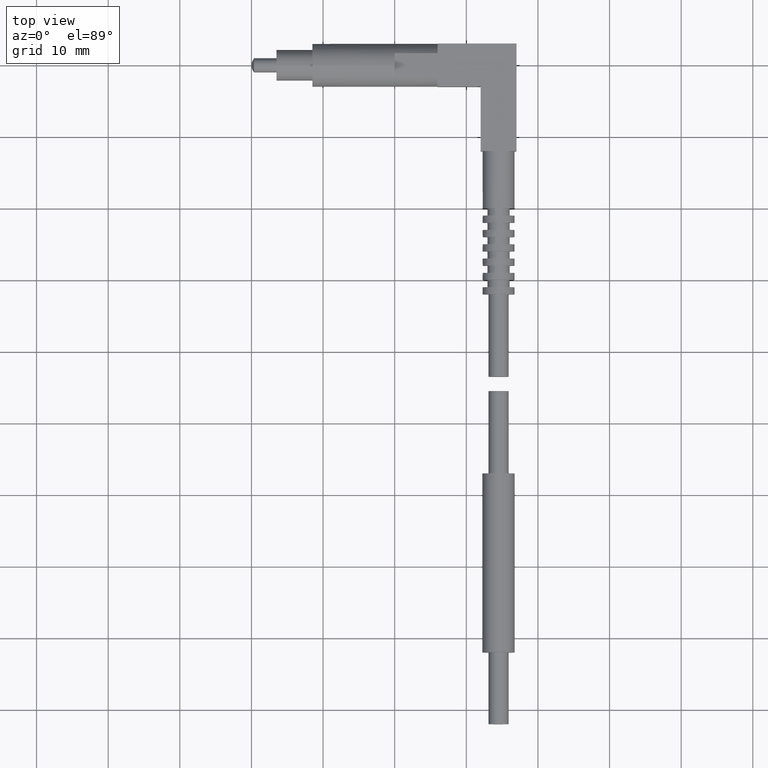
[diagram: clean part render]
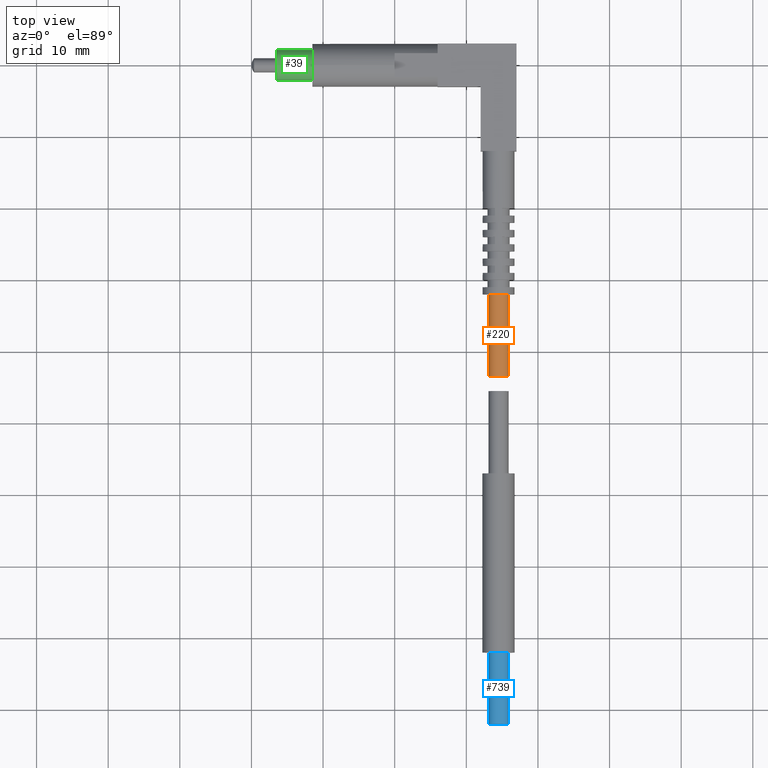
[diagram: same view with three faces highlighted in distinct colors, each labeled with its STEP entity id]
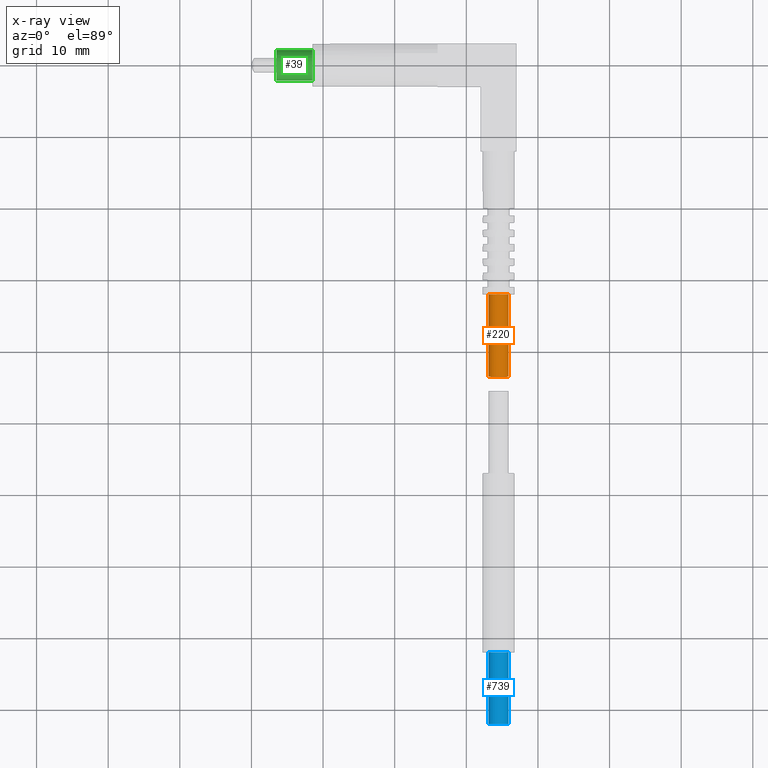
[diagram: x-ray of the same camera — body ghosted, the three highlighted faces saturated]
A machine part, top view with three faces highlighted in distinct colors.
The next image is the same camera in x-ray (body ghosted, the three faces saturated) — at least one of them is partly hidden behind the body in this view.
Their STEP definitions:

[orange] entity #220 — the highlighted cylindrical surface (bore or boss wall) has radius 1.4 mm, axis along (-0, -1, 0).
#50 = DIRECTION ( 'NONE',  ( -0.0000000000000000000, -1.000000000000000000, -0.0000000000000000000 ) ) ;
#137 = EDGE_LOOP ( 'NONE', ( #1401 ) ) ;
#214 = VERTEX_POINT ( 'NONE', #855 ) ;
#220 = ADVANCED_FACE ( 'NONE', ( #1279, #1238 ), #433, .T. ) ;
#259 = CARTESIAN_POINT ( 'NONE',  ( 1.358267716535433323, -3.622047282887606467, 0.0000000000000000000 ) ) ;
#289 = CIRCLE ( 'NONE', #1893, 0.05511811023622041616 ) ;
#433 = CYLINDRICAL_SURFACE ( 'NONE', #885, 0.05511811023622041616 ) ;
#509 = EDGE_CURVE ( 'NONE', #214, #214, #1437, .T. ) ;
#540 = ORIENTED_EDGE ( 'NONE', *, *, #509, .F. ) ;
#708 = DIRECTION ( 'NONE',  ( -3.469446909221080090E-16, -1.000000000000000000, 0.0000000000000000000 ) ) ;
#780 = DIRECTION ( 'NONE',  ( 0.0000000000000000000, 0.0000000000000000000, 1.000000000000000000 ) ) ;
#817 = DIRECTION ( 'NONE',  ( 1.000000000000000000, 0.0000000000000000000, 0.0000000000000000000 ) ) ;
#819 = AXIS2_PLACEMENT_3D ( 'NONE', #1510, #50, #780 ) ;
#855 = CARTESIAN_POINT ( 'NONE',  ( 1.358267716535433323, -1.712598425196850238, 0.05511811023622047168 ) ) ;
#885 = AXIS2_PLACEMENT_3D ( 'NONE', #259, #708, #1412 ) ;
#990 = CARTESIAN_POINT ( 'NONE',  ( 1.413385826771653697, -1.259842519685039353, 0.0000000000000000000 ) ) ;
#1238 = FACE_OUTER_BOUND ( 'NONE', #137, .T. ) ;
#1251 = EDGE_CURVE ( 'NONE', #1846, #1846, #289, .T. ) ;
#1279 = FACE_OUTER_BOUND ( 'NONE', #1605, .T. ) ;
#1401 = ORIENTED_EDGE ( 'NONE', *, *, #1251, .T. ) ;
#1412 = DIRECTION ( 'NONE',  ( 1.000000000000000000, 0.0000000000000000000, 0.0000000000000000000 ) ) ;
#1437 = CIRCLE ( 'NONE', #819, 0.05511811023622047168 ) ;
#1510 = CARTESIAN_POINT ( 'NONE',  ( 1.358267716535433323, -1.712598425196850238, 0.0000000000000000000 ) ) ;
#1533 = CARTESIAN_POINT ( 'NONE',  ( 1.358267716535433323, -1.259842519685039353, 0.0000000000000000000 ) ) ;
#1605 = EDGE_LOOP ( 'NONE', ( #540 ) ) ;
#1836 = DIRECTION ( 'NONE',  ( -3.469446909221080090E-16, -1.000000000000000000, 0.0000000000000000000 ) ) ;
#1846 = VERTEX_POINT ( 'NONE', #990 ) ;
#1893 = AXIS2_PLACEMENT_3D ( 'NONE', #1533, #1836, #817 ) ;

[blue] entity #739 — the highlighted cylindrical surface (bore or boss wall) has radius 1.4 mm, axis along (-0, -1, 0).
#125 = CARTESIAN_POINT ( 'NONE',  ( 1.413385905511810980, -3.622047204724409664, 0.0000000000000000000 ) ) ;
#194 = DIRECTION ( 'NONE',  ( 1.000000000000000000, 0.0000000000000000000, 0.0000000000000000000 ) ) ;
#213 = AXIS2_PLACEMENT_3D ( 'NONE', #527, #218, #644 ) ;
#218 = DIRECTION ( 'NONE',  ( -3.469446909221080090E-16, -1.000000000000000000, 0.0000000000000000000 ) ) ;
#429 = CIRCLE ( 'NONE', #682, 0.05511818897637785208 ) ;
#521 = CIRCLE ( 'NONE', #1386, 0.05511818897637785208 ) ;
#527 = CARTESIAN_POINT ( 'NONE',  ( 1.358267716535433323, -3.622047282887606467, 0.0000000000000000000 ) ) ;
#563 = CARTESIAN_POINT ( 'NONE',  ( 1.413385905511810980, -3.228346417322834672, 0.0000000000000000000 ) ) ;
#620 = CARTESIAN_POINT ( 'NONE',  ( 1.358267716535433323, -3.622047204724409664, 0.0000000000000000000 ) ) ;
#644 = DIRECTION ( 'NONE',  ( 1.000000000000000000, 0.0000000000000000000, 0.0000000000000000000 ) ) ;
#669 = FACE_OUTER_BOUND ( 'NONE', #994, .T. ) ;
#682 = AXIS2_PLACEMENT_3D ( 'NONE', #1051, #745, #1772 ) ;
#739 = ADVANCED_FACE ( 'NONE', ( #669, #779 ), #1900, .T. ) ;
#745 = DIRECTION ( 'NONE',  ( -3.469446909221080090E-16, -1.000000000000000000, 0.0000000000000000000 ) ) ;
#779 = FACE_OUTER_BOUND ( 'NONE', #1513, .T. ) ;
#918 = EDGE_CURVE ( 'NONE', #1315, #1315, #429, .T. ) ;
#994 = EDGE_LOOP ( 'NONE', ( #1621 ) ) ;
#1051 = CARTESIAN_POINT ( 'NONE',  ( 1.358267716535433323, -3.228346417322834672, 0.0000000000000000000 ) ) ;
#1116 = EDGE_CURVE ( 'NONE', #1699, #1699, #521, .T. ) ;
#1315 = VERTEX_POINT ( 'NONE', #563 ) ;
#1386 = AXIS2_PLACEMENT_3D ( 'NONE', #620, #1808, #194 ) ;
#1473 = ORIENTED_EDGE ( 'NONE', *, *, #1116, .F. ) ;
#1513 = EDGE_LOOP ( 'NONE', ( #1473 ) ) ;
#1621 = ORIENTED_EDGE ( 'NONE', *, *, #918, .T. ) ;
#1699 = VERTEX_POINT ( 'NONE', #125 ) ;
#1772 = DIRECTION ( 'NONE',  ( 1.000000000000000000, 0.0000000000000000000, 0.0000000000000000000 ) ) ;
#1808 = DIRECTION ( 'NONE',  ( -3.469446909221080090E-16, -1.000000000000000000, 0.0000000000000000000 ) ) ;
#1900 = CYLINDRICAL_SURFACE ( 'NONE', #213, 0.05511818897637785208 ) ;

[green] entity #39 — the highlighted cylindrical surface (bore or boss wall) has radius 2.15 mm, axis along (-1, 0, 0).
#39 = ADVANCED_FACE ( 'NONE', ( #1805, #271 ), #1194, .T. ) ;
#65 = EDGE_CURVE ( 'NONE', #328, #328, #1571, .T. ) ;
#104 = CARTESIAN_POINT ( 'NONE',  ( 0.3346456692913385988, 0.0000000000000000000, 0.0000000000000000000 ) ) ;
#109 = DIRECTION ( 'NONE',  ( -1.000000000000000000, 0.0000000000000000000, 0.0000000000000000000 ) ) ;
#134 = ORIENTED_EDGE ( 'NONE', *, *, #1329, .T. ) ;
#167 = DIRECTION ( 'NONE',  ( -1.000000000000000000, 0.0000000000000000000, 0.0000000000000000000 ) ) ;
#243 = CARTESIAN_POINT ( 'NONE',  ( 0.3346456692913385988, 0.0000000000000000000, 0.08464566929133858497 ) ) ;
#271 = FACE_OUTER_BOUND ( 'NONE', #1042, .T. ) ;
#328 = VERTEX_POINT ( 'NONE', #1117 ) ;
#464 = VERTEX_POINT ( 'NONE', #243 ) ;
#627 = CARTESIAN_POINT ( 'NONE',  ( 0.0000000000000000000, 0.0000000000000000000, 0.0000000000000000000 ) ) ;
#1042 = EDGE_LOOP ( 'NONE', ( #134 ) ) ;
#1063 = DIRECTION ( 'NONE',  ( 0.0000000000000000000, 0.0000000000000000000, 1.000000000000000000 ) ) ;
#1079 = DIRECTION ( 'NONE',  ( -1.000000000000000000, 0.0000000000000000000, 0.0000000000000000000 ) ) ;
#1112 = EDGE_LOOP ( 'NONE', ( #1286 ) ) ;
#1117 = CARTESIAN_POINT ( 'NONE',  ( 0.1377952755905511861, 0.0000000000000000000, 0.08464566929133858497 ) ) ;
#1194 = CYLINDRICAL_SURFACE ( 'NONE', #1572, 0.08464566929133858497 ) ;
#1274 = CIRCLE ( 'NONE', #1457, 0.08464566929133858497 ) ;
#1286 = ORIENTED_EDGE ( 'NONE', *, *, #65, .F. ) ;
#1329 = EDGE_CURVE ( 'NONE', #464, #464, #1274, .T. ) ;
#1457 = AXIS2_PLACEMENT_3D ( 'NONE', #104, #109, #1865 ) ;
#1571 = CIRCLE ( 'NONE', #1767, 0.08464566929133858497 ) ;
#1572 = AXIS2_PLACEMENT_3D ( 'NONE', #627, #167, #1629 ) ;
#1629 = DIRECTION ( 'NONE',  ( 0.0000000000000000000, 0.0000000000000000000, 1.000000000000000000 ) ) ;
#1767 = AXIS2_PLACEMENT_3D ( 'NONE', #1801, #1079, #1063 ) ;
#1801 = CARTESIAN_POINT ( 'NONE',  ( 0.1377952755905511861, 0.0000000000000000000, 0.0000000000000000000 ) ) ;
#1805 = FACE_OUTER_BOUND ( 'NONE', #1112, .T. ) ;
#1865 = DIRECTION ( 'NONE',  ( 0.0000000000000000000, 0.0000000000000000000, 1.000000000000000000 ) ) ;